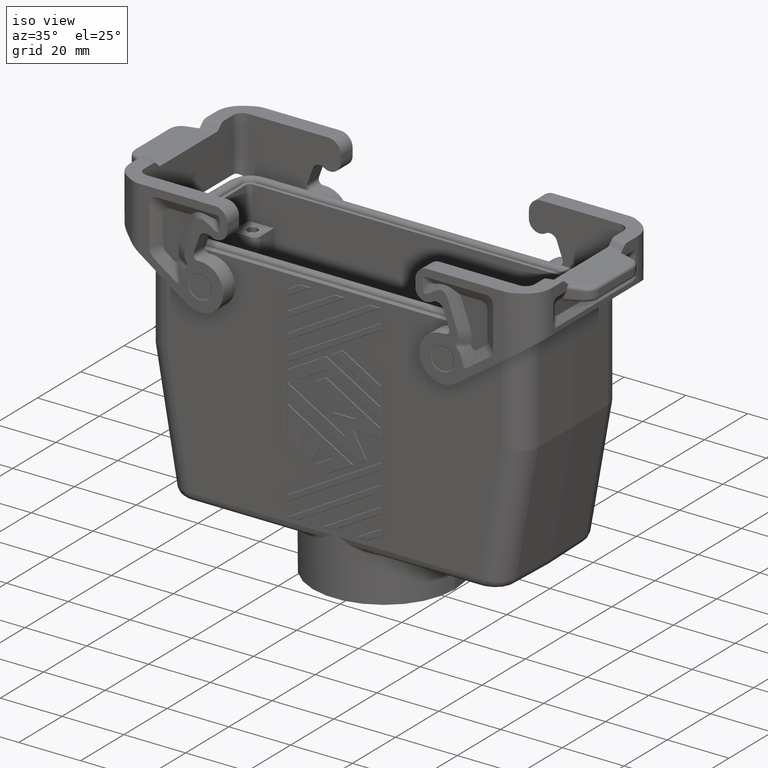
[diagram: clean part render]
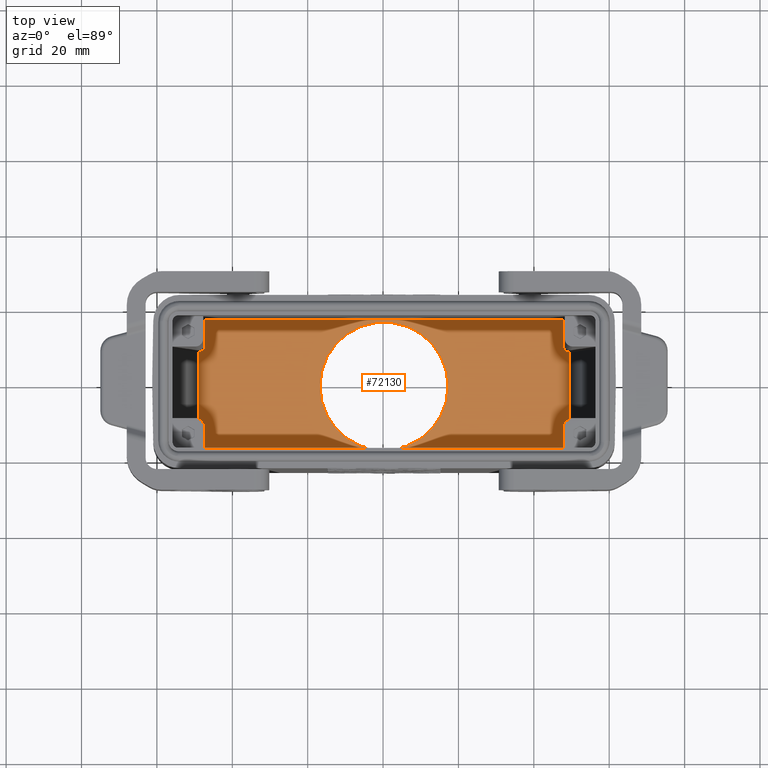
[diagram: tour spotlight — one face highlighted and labeled with its STEP entity id]
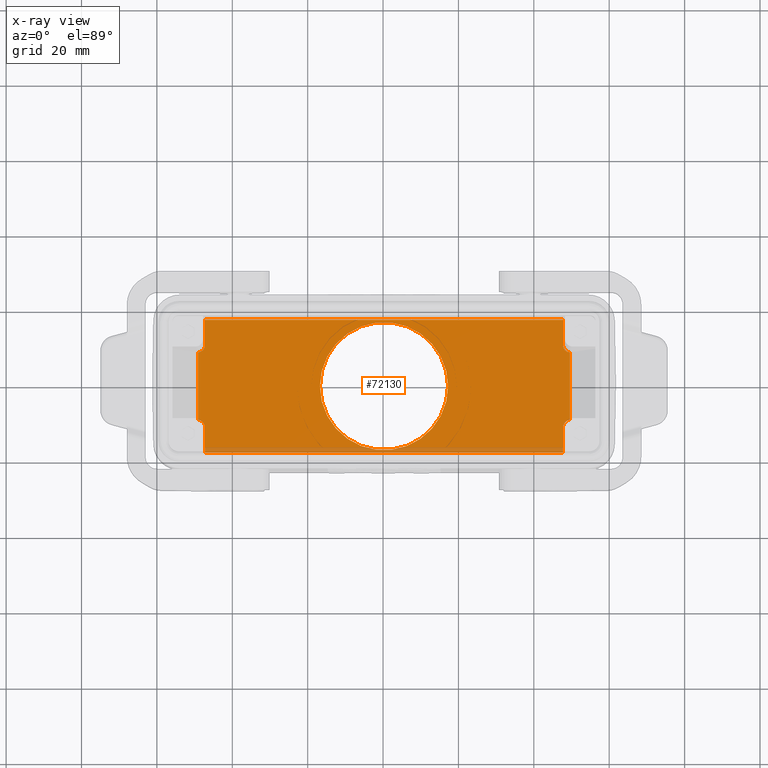
[diagram: x-ray of the same camera — body ghosted, this tour face saturated]
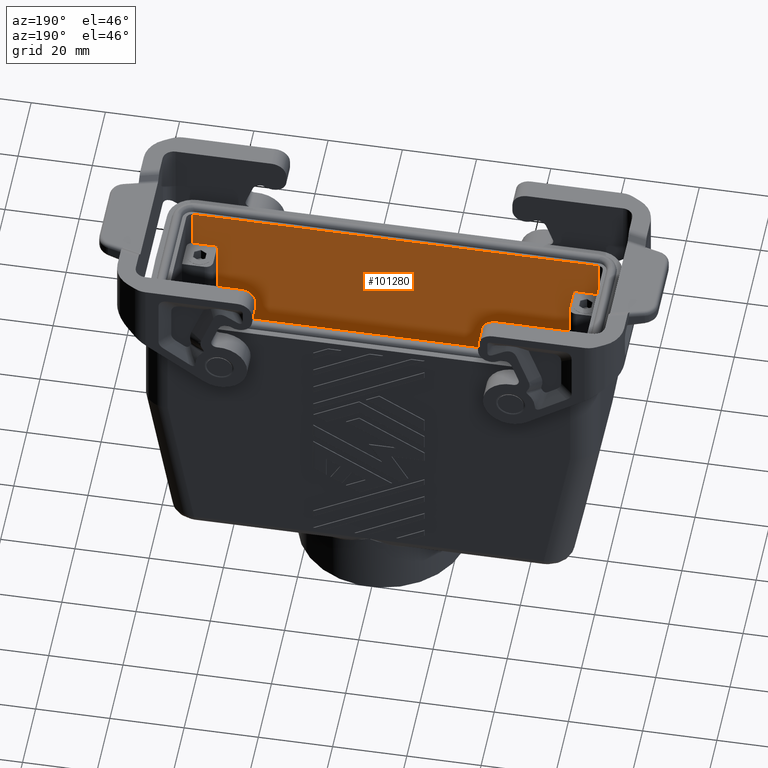
[diagram: tour spotlight — one face highlighted and labeled with its STEP entity id]
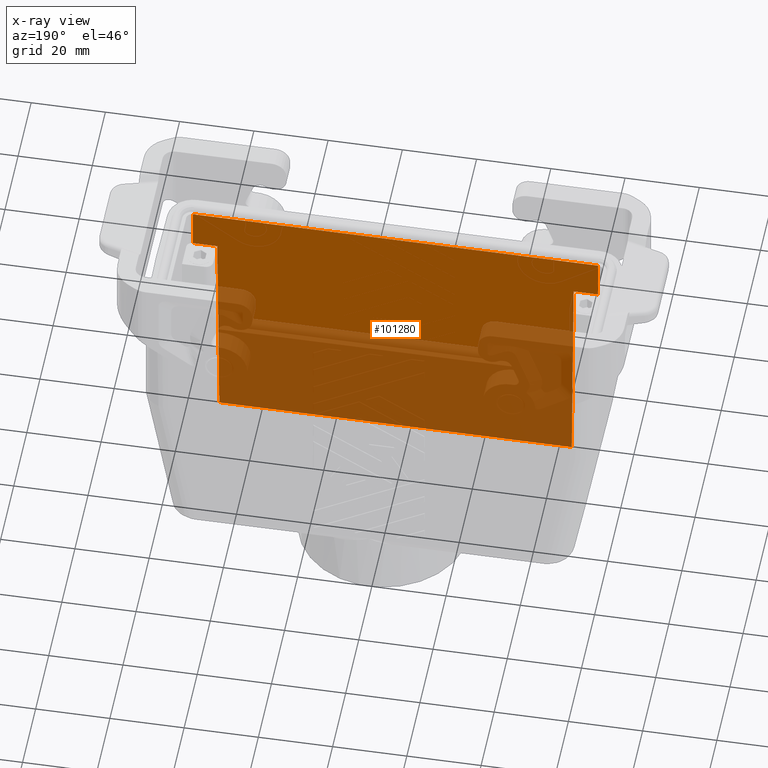
[diagram: x-ray of the same camera — body ghosted, this tour face saturated]
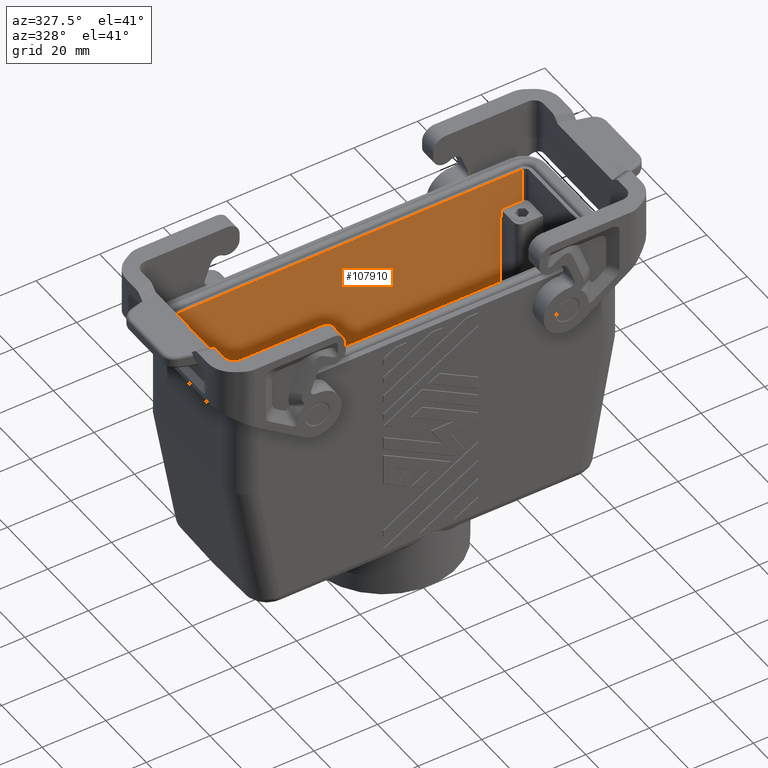
[diagram: tour spotlight — one face highlighted and labeled with its STEP entity id]
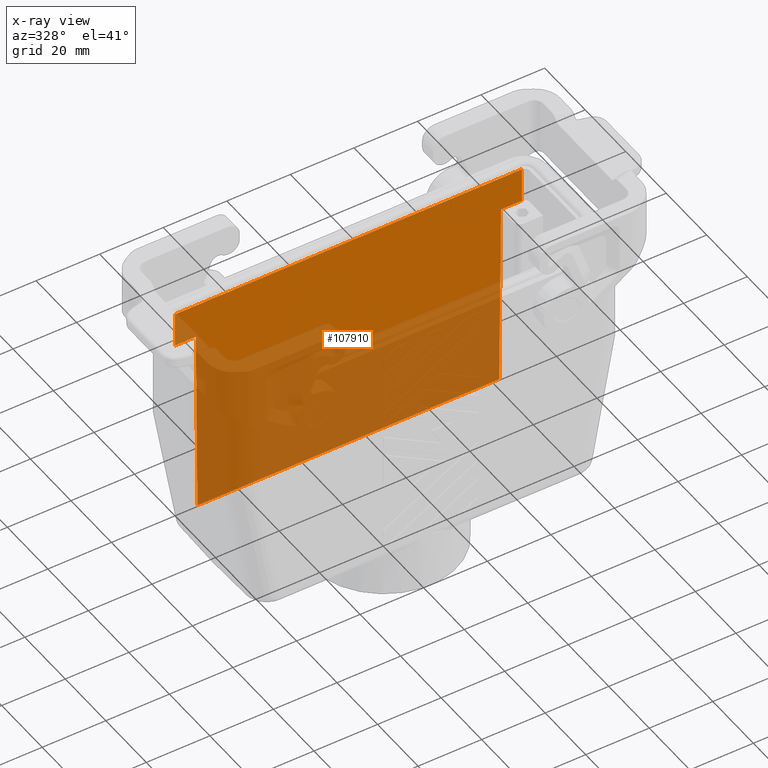
[diagram: x-ray of the same camera — body ghosted, this tour face saturated]
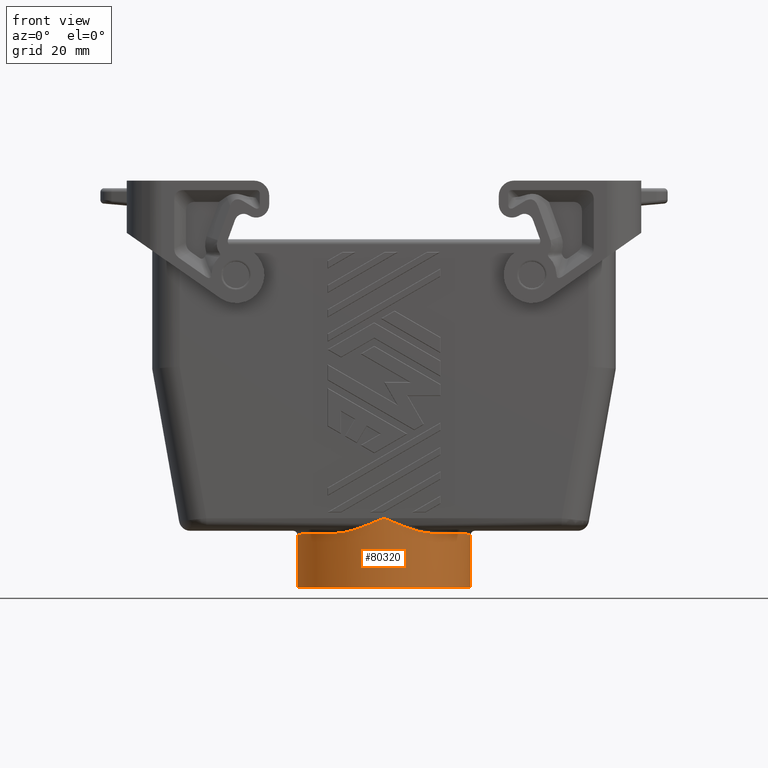
[diagram: tour spotlight — one face highlighted and labeled with its STEP entity id]
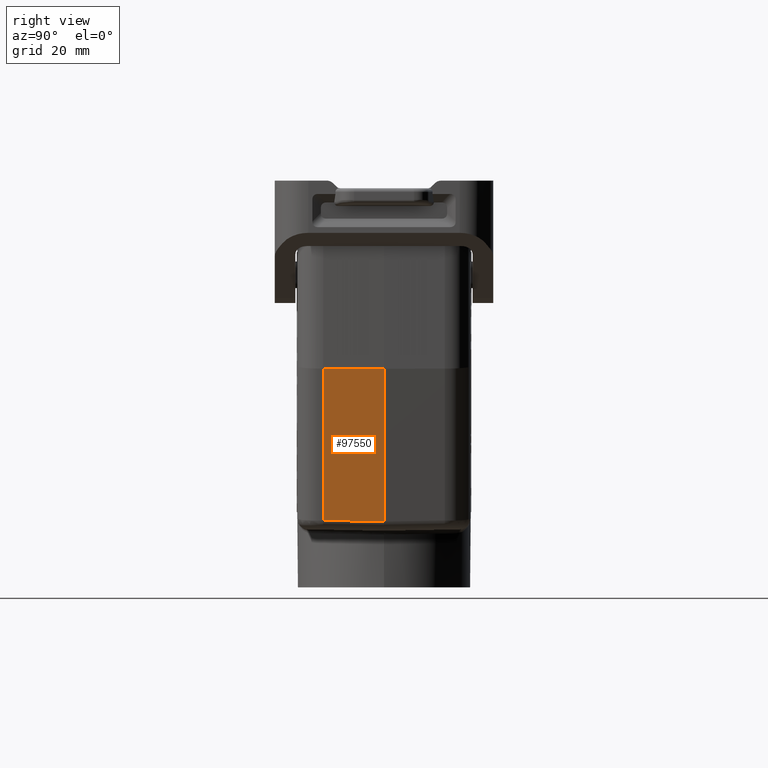
[diagram: tour spotlight — one face highlighted and labeled with its STEP entity id]
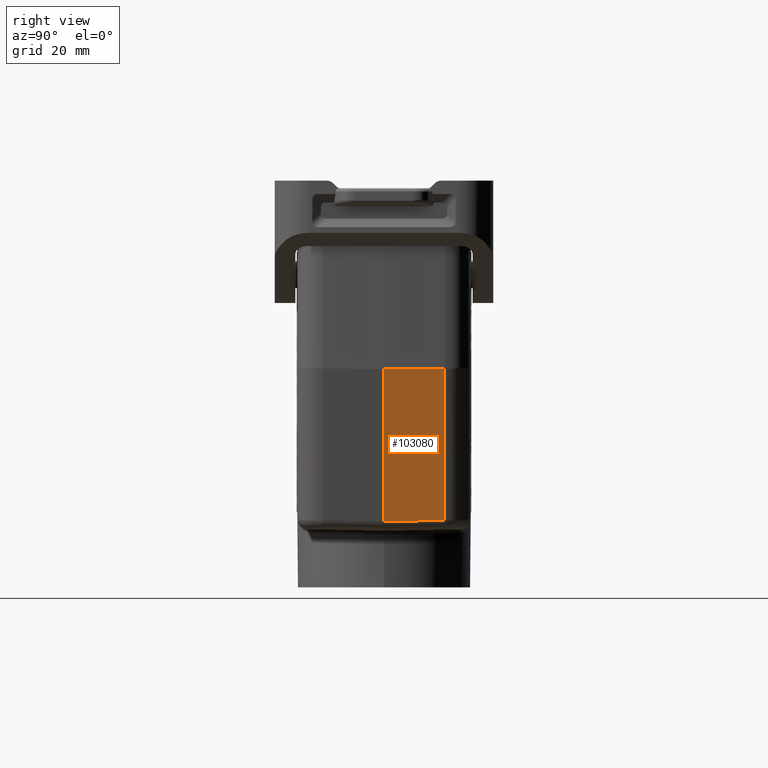
[diagram: tour spotlight — one face highlighted and labeled with its STEP entity id]
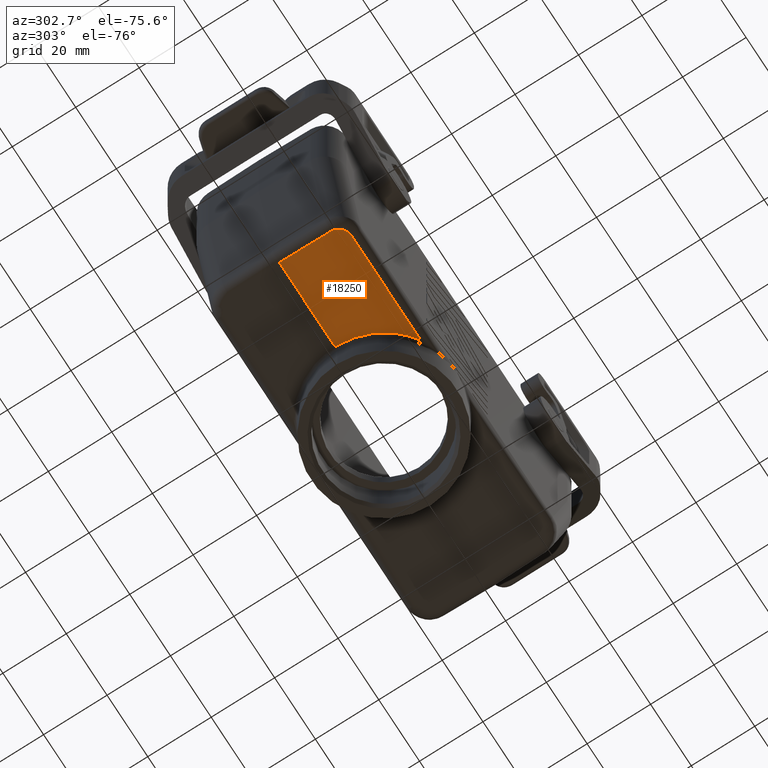
[diagram: tour spotlight — one face highlighted and labeled with its STEP entity id]
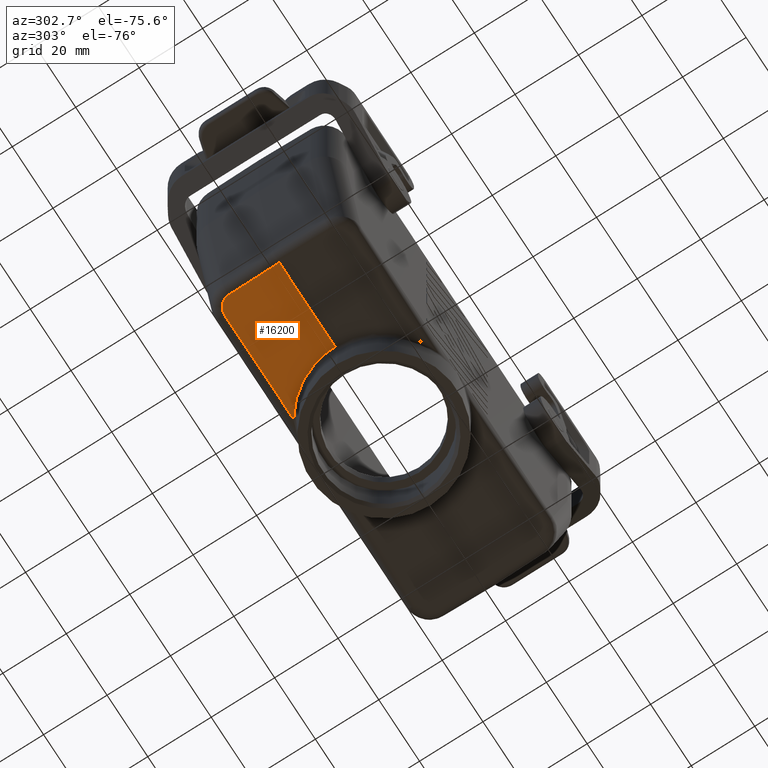
[diagram: tour spotlight — one face highlighted and labeled with its STEP entity id]
A machine part: a face-by-face anatomy tour. The part has 562 B-rep faces; the first image is the clean iso view, then the 8 largest visible faces are spotlighted one at a time (largest first), each with its STEP entity span.

Face 1 — top view, entity #72130. An x-ray twin of the same camera follows (body ghosted, this face saturated) — the face is partly hidden behind the body. In plain terms, the highlighted planar face has unit normal (0, 0, 1).
Definition (entity closure, byte-faithful):
#70910=CARTESIAN_POINT('',(35.5552947479214,94.100393,22.6364652298223))
;
#70920=DIRECTION('',(-0.,-1.,-0.));
#70930=DIRECTION('',(-1.,0.,0.));
#70940=AXIS2_PLACEMENT_3D('',#70910,#70920,#70930);
#70950=PLANE('',#70940);
#70960=CARTESIAN_POINT('',(-2.74650201756106,94.100393,
-1.06581410364015E-14));
#70970=DIRECTION('',(0.,1.,0.));
#70980=DIRECTION('',(-1.,0.,0.));
#70990=AXIS2_PLACEMENT_3D('',#70960,#70970,#70980);
#71000=CIRCLE('',#70990,17.);
#71010=CARTESIAN_POINT('',(-19.7465020175611,94.100393,
-1.06581410364015E-14));
#71020=VERTEX_POINT('',#71010);
#71030=CARTESIAN_POINT('',(14.2534979824389,94.100393,
-8.576241477851E-15));
#71040=VERTEX_POINT('',#71030);
#71050=EDGE_CURVE('',#71020,#71040,#71000,.T.);
#71060=ORIENTED_EDGE('',*,*,#71050,.T.);
#71070=EDGE_CURVE('',#71040,#71020,#71000,.T.);
#71080=ORIENTED_EDGE('',*,*,#71070,.T.);
#71090=EDGE_LOOP('',(#71080,#71060));
#71100=FACE_BOUND('',#71090,.T.);
#71110=CARTESIAN_POINT('',(44.7342493488889,94.100393,0.));
#71120=DIRECTION('',(-1.06873307065348E-18,0.,-1.));
#71130=VECTOR('',#71120,1.);
#71140=LINE('',#71110,#71130);
#71150=CARTESIAN_POINT('',(44.7342493488889,94.100393,17.5959955456979))
;
#71160=VERTEX_POINT('',#71150);
#71170=CARTESIAN_POINT('',(44.7342493488889,94.100393,10.9806752125778))
;
#71180=VERTEX_POINT('',#71170);
#71190=EDGE_CURVE('',#71160,#71180,#71140,.T.);
#71200=ORIENTED_EDGE('',*,*,#71190,.F.);
#71210=CARTESIAN_POINT('',(46.7343255056603,94.100393,10.9808275232209))
;
#71220=DIRECTION('',(0.,-1.,0.));
#71230=DIRECTION('',(-0.70710678118636,0.,-0.707106781186735));
#71240=AXIS2_PLACEMENT_3D('',#71210,#71220,#71230);
#71250=ELLIPSE('',#71240,2.00015231064324,2.);
#71260=CARTESIAN_POINT('',(46.5563898405001,94.100393,8.98866851922954))
;
#71270=VERTEX_POINT('',#71260);
#71280=EDGE_CURVE('',#71180,#71270,#71250,.T.);
#71290=ORIENTED_EDGE('',*,*,#71280,.F.);
#71300=CARTESIAN_POINT('',(46.5563898405001,94.100393,0.));
#71310=DIRECTION('',(2.15938272527935E-17,0.,1.));
#71320=VECTOR('',#71310,1.);
#71330=LINE('',#71300,#71320);
#71340=CARTESIAN_POINT('',(46.5563898405001,94.100393,-8.98866851923038)
);
#71350=VERTEX_POINT('',#71340);
#71360=EDGE_CURVE('',#71350,#71270,#71330,.T.);
#71370=ORIENTED_EDGE('',*,*,#71360,.T.);
#71380=CARTESIAN_POINT('',(46.7343255056603,94.100393,-10.9808275232217)
);
#71390=DIRECTION('',(0.,-1.,0.));
#71400=DIRECTION('',(0.707106781186345,0.,-0.70710678118675));
#71410=AXIS2_PLACEMENT_3D('',#71380,#71390,#71400);
#71420=ELLIPSE('',#71410,2.00015231064324,2.);
#71430=CARTESIAN_POINT('',(44.7342493488889,94.100393,-10.9806752125786)
);
#71440=VERTEX_POINT('',#71430);
#71450=EDGE_CURVE('',#71350,#71440,#71420,.T.);
#71460=ORIENTED_EDGE('',*,*,#71450,.F.);
#71470=CARTESIAN_POINT('',(44.7342493488889,94.100393,0.));
#71480=DIRECTION('',(1.06873307065347E-18,0.,1.));
#71490=VECTOR('',#71480,1.);
#71500=LINE('',#71470,#71490);
#71510=CARTESIAN_POINT('',(44.7342493488889,94.100393,-17.5959955456988)
);
#71520=VERTEX_POINT('',#71510);
#71530=EDGE_CURVE('',#71520,#71440,#71500,.T.);
#71540=ORIENTED_EDGE('',*,*,#71530,.T.);
#71550=CARTESIAN_POINT('',(45.6034979824379,94.100393,-17.5959955456988)
);
#71560=DIRECTION('',(1.,0.,1.06708598867538E-18));
#71570=VECTOR('',#71560,1.);
#71580=LINE('',#71550,#71570);
#71590=CARTESIAN_POINT('',(-50.2272533840108,94.100393,-17.5959955456988
));
#71600=VERTEX_POINT('',#71590);
#71610=EDGE_CURVE('',#71600,#71520,#71580,.T.);
#71620=ORIENTED_EDGE('',*,*,#71610,.T.);
#71630=CARTESIAN_POINT('',(-50.2272533840109,94.100393,0.));
#71640=DIRECTION('',(1.06873307065348E-18,0.,1.));
#71650=VECTOR('',#71640,1.);
#71660=LINE('',#71630,#71650);
#71670=CARTESIAN_POINT('',(-50.2272533840109,94.100393,-10.9806752125786
));
#71680=VERTEX_POINT('',#71670);
#71690=EDGE_CURVE('',#71600,#71680,#71660,.T.);
#71700=ORIENTED_EDGE('',*,*,#71690,.F.);
#71710=CARTESIAN_POINT('',(-52.2273295407823,94.100393,-10.9808275232217
));
#71720=DIRECTION('',(0.,-1.,0.));
#71730=DIRECTION('',(-0.70710678118636,0.,-0.707106781186735));
#71740=AXIS2_PLACEMENT_3D('',#71710,#71720,#71730);
#71750=ELLIPSE('',#71740,2.00015231064324,2.);
#71760=CARTESIAN_POINT('',(-52.0493938756221,94.100393,-8.98866851923037
));
#71770=VERTEX_POINT('',#71760);
#71780=EDGE_CURVE('',#71680,#71770,#71750,.T.);
#71790=ORIENTED_EDGE('',*,*,#71780,.F.);
#71800=CARTESIAN_POINT('',(-52.0493938756221,94.100393,0.));
#71810=DIRECTION('',(-2.15938272527935E-17,0.,-1.));
#71820=VECTOR('',#71810,1.);
#71830=LINE('',#71800,#71820);
#71840=CARTESIAN_POINT('',(-52.0493938756221,94.100393,8.98866851922955)
);
#71850=VERTEX_POINT('',#71840);
#71860=EDGE_CURVE('',#71850,#71770,#71830,.T.);
#71870=ORIENTED_EDGE('',*,*,#71860,.T.);
#71880=CARTESIAN_POINT('',(-52.2273295407823,94.100393,10.9808275232209)
);
#71890=DIRECTION('',(0.,-1.,0.));
#71900=DIRECTION('',(0.707106781186345,0.,-0.70710678118675));
#71910=AXIS2_PLACEMENT_3D('',#71880,#71890,#71900);
#71920=ELLIPSE('',#71910,2.00015231064324,2.);
#71930=CARTESIAN_POINT('',(-50.2272533840109,94.100393,10.9806752125778)
);
#71940=VERTEX_POINT('',#71930);
#71950=EDGE_CURVE('',#71850,#71940,#71920,.T.);
#71960=ORIENTED_EDGE('',*,*,#71950,.F.);
#71970=CARTESIAN_POINT('',(-50.2272533840109,94.100393,0.));
#71980=DIRECTION('',(-1.06873307065347E-18,0.,-1.));
#71990=VECTOR('',#71980,1.);
#72000=LINE('',#71970,#71990);
#72010=CARTESIAN_POINT('',(-50.2272533840109,94.100393,17.5959955456979)
);
#72020=VERTEX_POINT('',#72010);
#72030=EDGE_CURVE('',#72020,#71940,#72000,.T.);
#72040=ORIENTED_EDGE('',*,*,#72030,.T.);
#72050=CARTESIAN_POINT('',(45.6034979824379,94.100393,17.5959955456979))
;
#72060=DIRECTION('',(-1.,0.,-1.0703801526316E-18));
#72070=VECTOR('',#72060,1.);
#72080=LINE('',#72050,#72070);
#72090=EDGE_CURVE('',#71160,#72020,#72080,.T.);
#72100=ORIENTED_EDGE('',*,*,#72090,.T.);
#72110=EDGE_LOOP('',(#72100,#72040,#71960,#71870,#71790,#71700,#71620,
#71540,#71460,#71370,#71290,#71200));
#72120=FACE_OUTER_BOUND('',#72110,.T.);
#72130=ADVANCED_FACE('',(#71100,#72120),#70950,.T.);

Face 2 — auxiliary view, entity #101280. An x-ray twin of the same camera follows (body ghosted, this face saturated) — the face is partly hidden behind the body. In plain terms, the highlighted planar face has unit normal (0, -1, -0).
Definition (entity closure, byte-faithful):
#71150=CARTESIAN_POINT('',(44.7342493488889,94.100393,17.5959955456979))
;
#71160=VERTEX_POINT('',#71150);
#72010=CARTESIAN_POINT('',(-50.2272533840109,94.100393,17.5959955456979)
);
#72020=VERTEX_POINT('',#72010);
#72050=CARTESIAN_POINT('',(45.6034979824379,94.100393,17.5959955456979))
;
#72060=DIRECTION('',(-1.,0.,-1.0703801526316E-18));
#72070=VECTOR('',#72060,1.);
#72080=LINE('',#72050,#72070);
#72090=EDGE_CURVE('',#71160,#72020,#72080,.T.);
#81490=CARTESIAN_POINT('',(-57.3424975632594,34.600393,17.5959955456979)
);
#81500=VERTEX_POINT('',#81490);
#81530=CARTESIAN_POINT('',(45.6034979824379,34.600393,17.5959955456979))
;
#81540=DIRECTION('',(-1.,-1.22464679914735E-16,-1.07038015263161E-18));
#81550=VECTOR('',#81540,1.);
#81560=LINE('',#81530,#81550);
#81570=CARTESIAN_POINT('',(-50.746502017561,34.600393,17.5959955456979))
;
#81580=VERTEX_POINT('',#81570);
#81590=EDGE_CURVE('',#81580,#81500,#81560,.T.);
#96490=CARTESIAN_POINT('',(-50.5614095918854,55.8098842073269,
17.5959955456979));
#96500=DIRECTION('',(-0.00872653549837365,-0.999961923064171,0.));
#96510=VECTOR('',#96500,1.);
#96520=LINE('',#96490,#96510);
#96530=EDGE_CURVE('',#72020,#81580,#96520,.T.);
#100800=CARTESIAN_POINT('',(45.6034979824379,23.6003929999999,
17.5959955456979));
#100810=DIRECTION('',(-1.0703801526316E-18,2.02020232389875E-37,1.));
#100820=DIRECTION('',(1.,0.,1.0703801526316E-18));
#100830=AXIS2_PLACEMENT_3D('',#100800,#100810,#100820);
#100840=PLANE('',#100830);
#100850=CARTESIAN_POINT('',(45.6034979824379,34.600393,17.5959955456979)
);
#100860=DIRECTION('',(1.,1.92592994438724E-34,1.0703801526316E-18));
#100870=VECTOR('',#100860,1.);
#100880=LINE('',#100850,#100870);
#100890=CARTESIAN_POINT('',(45.253497982439,34.600393,17.5959955456979))
;
#100900=VERTEX_POINT('',#100890);
#100910=CARTESIAN_POINT('',(51.8494935281373,34.600393,17.5959955456979)
);
#100920=VERTEX_POINT('',#100910);
#100930=EDGE_CURVE('',#100900,#100920,#100880,.T.);
#100940=ORIENTED_EDGE('',*,*,#100930,.T.);
#100950=CARTESIAN_POINT('',(45.0684055567634,55.8098842073269,
17.5959955456979));
#100960=DIRECTION('',(0.00872653549837378,-0.999961923064171,0.));
#100970=VECTOR('',#100960,1.);
#100980=LINE('',#100950,#100970);
#100990=EDGE_CURVE('',#71160,#100900,#100980,.T.);
#101000=ORIENTED_EDGE('',*,*,#100990,.T.);
#101010=ORIENTED_EDGE('',*,*,#72090,.F.);
#101020=ORIENTED_EDGE('',*,*,#96530,.F.);
#101030=ORIENTED_EDGE('',*,*,#81590,.F.);
#101040=CARTESIAN_POINT('',(-57.3424975632594,55.8098842073269,
17.5959955456979));
#101050=DIRECTION('',(-1.88736900523796E-19,-1.,0.));
#101060=VECTOR('',#101050,1.);
#101070=LINE('',#101040,#101060);
#101080=CARTESIAN_POINT('',(-57.3424975632594,23.6003929999999,
17.5959955456979));
#101090=VERTEX_POINT('',#101080);
#101100=EDGE_CURVE('',#81500,#101090,#101070,.T.);
#101110=ORIENTED_EDGE('',*,*,#101100,.F.);
#101120=CARTESIAN_POINT('',(45.6034979824379,23.6003929999999,
17.5959955456979));
#101130=DIRECTION('',(1.,-1.88736900523796E-19,1.0703801526316E-18));
#101140=VECTOR('',#101130,1.);
#101150=LINE('',#101120,#101140);
#101160=CARTESIAN_POINT('',(51.8494935281373,23.6003929999999,
17.5959955456979));
#101170=VERTEX_POINT('',#101160);
#101180=EDGE_CURVE('',#101090,#101170,#101150,.T.);
#101190=ORIENTED_EDGE('',*,*,#101180,.F.);
#101200=CARTESIAN_POINT('',(51.8494935281373,55.8098842073269,
17.5959955456979));
#101210=DIRECTION('',(1.88736900523796E-19,1.,0.));
#101220=VECTOR('',#101210,1.);
#101230=LINE('',#101200,#101220);
#101240=EDGE_CURVE('',#101170,#100920,#101230,.T.);
#101250=ORIENTED_EDGE('',*,*,#101240,.F.);
#101260=EDGE_LOOP('',(#101250,#101190,#101110,#101030,#101020,#101010,
#101000,#100940));
#101270=FACE_OUTER_BOUND('',#101260,.T.);
#101280=ADVANCED_FACE('',(#101270),#100840,.F.);

Face 3 — auxiliary view, entity #107910. An x-ray twin of the same camera follows (body ghosted, this face saturated) — the face is partly hidden behind the body. In plain terms, the highlighted planar face has unit normal (-0, 1, 0).
Definition (entity closure, byte-faithful):
#71510=CARTESIAN_POINT('',(44.7342493488889,94.100393,-17.5959955456988)
);
#71520=VERTEX_POINT('',#71510);
#71550=CARTESIAN_POINT('',(45.6034979824379,94.100393,-17.5959955456988)
);
#71560=DIRECTION('',(1.,0.,1.06708598867538E-18));
#71570=VECTOR('',#71560,1.);
#71580=LINE('',#71550,#71570);
#71590=CARTESIAN_POINT('',(-50.2272533840108,94.100393,-17.5959955456988
));
#71600=VERTEX_POINT('',#71590);
#71610=EDGE_CURVE('',#71600,#71520,#71580,.T.);
#82520=CARTESIAN_POINT('',(45.6034979824379,34.600393,-17.5959955456988)
);
#82530=DIRECTION('',(-1.,1.92592994438724E-34,-1.06708598867538E-18));
#82540=VECTOR('',#82530,1.);
#82550=LINE('',#82520,#82540);
#82560=CARTESIAN_POINT('',(-50.746502017561,34.600393,-17.5959955456988)
);
#82570=VERTEX_POINT('',#82560);
#82580=CARTESIAN_POINT('',(-57.3424975632594,34.600393,-17.5959955456988
));
#82590=VERTEX_POINT('',#82580);
#82600=EDGE_CURVE('',#82570,#82590,#82550,.T.);
#84310=CARTESIAN_POINT('',(51.8494935281373,34.600393,-17.5959955456988)
);
#84320=VERTEX_POINT('',#84310);
#84350=CARTESIAN_POINT('',(45.6034979824379,34.600393,-17.5959955456988)
);
#84360=DIRECTION('',(1.,-1.22464679914735E-16,1.06708598867537E-18));
#84370=VECTOR('',#84360,1.);
#84380=LINE('',#84350,#84370);
#84390=CARTESIAN_POINT('',(45.253497982439,34.600393,-17.5959955456988))
;
#84400=VERTEX_POINT('',#84390);
#84410=EDGE_CURVE('',#84400,#84320,#84380,.T.);
#86600=CARTESIAN_POINT('',(-57.3424975632594,23.6003929999999,
-17.5959955456988));
#86610=VERTEX_POINT('',#86600);
#86660=CARTESIAN_POINT('',(-57.3424975632594,55.8098842073269,
-17.5959955456988));
#86670=DIRECTION('',(1.88736900523796E-19,1.,0.));
#86680=VECTOR('',#86670,1.);
#86690=LINE('',#86660,#86680);
#86700=EDGE_CURVE('',#86610,#82590,#86690,.T.);
#102730=CARTESIAN_POINT('',(-50.5614095918854,55.8098842073269,
-17.5959955456988));
#102740=DIRECTION('',(-0.00872653549837378,-0.999961923064171,0.));
#102750=VECTOR('',#102740,1.);
#102760=LINE('',#102730,#102750);
#102770=EDGE_CURVE('',#71600,#82570,#102760,.T.);
#107590=CARTESIAN_POINT('',(45.6034979824379,23.6003929999999,
-17.5959955456988));
#107600=DIRECTION('',(1.06708598867538E-18,-2.01398502094961E-37,-1.));
#107610=DIRECTION('',(-1.,0.,-1.06708598867538E-18));
#107620=AXIS2_PLACEMENT_3D('',#107590,#107600,#107610);
#107630=PLANE('',#107620);
#107640=CARTESIAN_POINT('',(45.6034979824379,23.6003929999999,
-17.5959955456988));
#107650=DIRECTION('',(-1.,1.88736900523796E-19,-1.06708598867538E-18));
#107660=VECTOR('',#107650,1.);
#107670=LINE('',#107640,#107660);
#107680=CARTESIAN_POINT('',(51.8494935281373,23.6003929999999,
-17.5959955456988));
#107690=VERTEX_POINT('',#107680);
#107700=EDGE_CURVE('',#107690,#86610,#107670,.T.);
#107710=ORIENTED_EDGE('',*,*,#107700,.F.);
#107720=ORIENTED_EDGE('',*,*,#86700,.F.);
#107730=ORIENTED_EDGE('',*,*,#82600,.T.);
#107740=ORIENTED_EDGE('',*,*,#102770,.T.);
#107750=ORIENTED_EDGE('',*,*,#71610,.F.);
#107760=CARTESIAN_POINT('',(45.0684055567634,55.8098842073269,
-17.5959955456988));
#107770=DIRECTION('',(0.00872653549837365,-0.999961923064171,0.));
#107780=VECTOR('',#107770,1.);
#107790=LINE('',#107760,#107780);
#107800=EDGE_CURVE('',#71520,#84400,#107790,.T.);
#107810=ORIENTED_EDGE('',*,*,#107800,.F.);
#107820=ORIENTED_EDGE('',*,*,#84410,.F.);
#107830=CARTESIAN_POINT('',(51.8494935281373,55.8098842073269,
-17.5959955456988));
#107840=DIRECTION('',(-1.88736900523796E-19,-1.,0.));
#107850=VECTOR('',#107840,1.);
#107860=LINE('',#107830,#107850);
#107870=EDGE_CURVE('',#84320,#107690,#107860,.T.);
#107880=ORIENTED_EDGE('',*,*,#107870,.F.);
#107890=EDGE_LOOP('',(#107880,#107820,#107810,#107750,#107740,#107730,
#107720,#107710));
#107900=FACE_OUTER_BOUND('',#107890,.T.);
#107910=ADVANCED_FACE('',(#107900),#107630,.F.);

Face 4 — front view, entity #80320. In plain terms, the highlighted cylindrical surface (partial cylindrical patch) has radius 23 mm, axis along (0, 0, 1).
Definition (entity closure, byte-faithful):
#10640=CARTESIAN_POINT('',(9.86578833981932,100.250225519835,
19.2335678422161));
#10650=CARTESIAN_POINT('',(9.82303332829895,100.249714885179,
19.2616041703666));
#10660=CARTESIAN_POINT('',(9.78017333437998,100.248885358312,
19.2895053288084));
#10670=CARTESIAN_POINT('',(9.66768015074339,100.245903277909,
19.3622039938679));
#10680=CARTESIAN_POINT('',(9.59792219396867,100.243248809754,
19.406752171421));
#10690=CARTESIAN_POINT('',(9.4578483936881,100.236391114615,
19.495145784539));
#10700=CARTESIAN_POINT('',(9.38754128071854,100.232183941168,
19.5389826936219));
#10710=CARTESIAN_POINT('',(9.24651774466798,100.22229408507,
19.6258590407967));
#10720=CARTESIAN_POINT('',(9.17579542822283,100.216609134742,
19.6689007741836));
#10730=CARTESIAN_POINT('',(8.96303267309325,100.197442409728,
19.7968234163247));
#10740=CARTESIAN_POINT('',(8.82047497817381,100.181849672724,
19.8804481597253));
#10750=CARTESIAN_POINT('',(8.53403590869707,100.145555793672,
20.0443694603297));
#10760=CARTESIAN_POINT('',(8.39017610358687,100.12484853335,
20.1246466836027));
#10770=CARTESIAN_POINT('',(8.10124460134423,100.078776756877,
20.2818511716149));
#10780=CARTESIAN_POINT('',(7.95623400486705,100.05341456866,
20.3587388696096));
#10790=CARTESIAN_POINT('',(7.71061001456071,100.007031189639,
20.4856417699619));
#10800=CARTESIAN_POINT('',(7.61028192392796,99.9871262352295,
20.5365439756472));
#10810=CARTESIAN_POINT('',(7.40914598991442,99.9454274069495,
20.6367499847685));
#10820=CARTESIAN_POINT('',(7.30836076337757,99.9236362781164,
20.6860405692555));
#10830=CARTESIAN_POINT('',(7.10636386323745,99.8782835290775,
20.7830122236568));
#10840=CARTESIAN_POINT('',(7.00516387823428,99.8547229530483,
20.8306860067318));
#10850=CARTESIAN_POINT('',(6.80237230878002,99.8059395331292,
20.9244232272598));
#10860=CARTESIAN_POINT('',(6.70079146343674,99.7807179207429,
20.9704801896698));
#10870=CARTESIAN_POINT('',(6.49725124276215,99.7287091650598,
21.0609933953118));
#10880=CARTESIAN_POINT('',(6.3953017057002,99.7019231097968,
21.1054435768733));
#10890=CARTESIAN_POINT('',(6.19106768033632,99.6468839845523,
21.1927390874569));
#10900=CARTESIAN_POINT('',(6.08878218766546,99.6186294700844,
21.2355833794994));
#10910=CARTESIAN_POINT('',(5.7814129237814,99.5317855617436,
21.3617359645936));
#10920=CARTESIAN_POINT('',(5.57594956197748,99.471150623542,
21.442602611989));
#10930=CARTESIAN_POINT('',(5.16379498999012,99.3449775099472,
21.5980511182038));
#10940=CARTESIAN_POINT('',(4.95713622877756,99.2794398255352,
21.6726073566885));
#10950=CARTESIAN_POINT('',(4.54287154486126,99.1440749307175,
21.8154323434179));
#10960=CARTESIAN_POINT('',(4.33531677122452,99.0742597246405,
21.8836762973212));
#10970=CARTESIAN_POINT('',(3.91937828450702,98.9308575138146,
22.0139406055973));
#10980=CARTESIAN_POINT('',(3.71103967227678,98.8572822072,
22.0759402758655));
#10990=CARTESIAN_POINT('',(3.29366080660055,98.7068366744568,
22.1937715134881));
#11000=CARTESIAN_POINT('',(3.08465905468705,98.6299775223648,
22.2495868980842));
#11010=CARTESIAN_POINT('',(2.6428587179388,98.4647191054812,
22.3609552447511));
#11020=CARTESIAN_POINT('',(2.41004539787559,98.3760034906663,
22.4157743000101));
#11030=CARTESIAN_POINT('',(1.94379740668393,98.195580681463,
22.5179503101454));
#11040=CARTESIAN_POINT('',(1.71040487493784,98.1038876604579,
22.565292994494));
#11050=CARTESIAN_POINT('',(1.24309136224753,97.9180018664418,
22.6525865795178));
#11060=CARTESIAN_POINT('',(1.00921139508543,97.8238237708998,
22.6925253306566));
#11070=CARTESIAN_POINT('',(0.541028245425359,97.6334338176503,
22.7650671983928));
#11080=CARTESIAN_POINT('',(0.306763093636192,97.5372363473227,
22.7976610487926));
#11090=CARTESIAN_POINT('',(-0.162181334881971,97.3432101266778,
22.8555713279321));
#11100=CARTESIAN_POINT('',(-0.396824939773509,97.2453949202402,
22.880878269768));
#11110=CARTESIAN_POINT('',(-0.866366259838237,97.0485790943068,
22.9242380752468));
#11120=CARTESIAN_POINT('',(-1.10122989767678,96.9495922895153,
22.9422858724924));
#11130=CARTESIAN_POINT('',(-1.57114420892366,96.7508281567355,
22.9711549352803));
#11140=CARTESIAN_POINT('',(-1.80616196652742,96.6510644263286,
22.9819726223628));
#11150=CARTESIAN_POINT('',(-2.27630331077967,96.4511386088893,
22.9963959917277));
#11160=CARTESIAN_POINT('',(-2.51137342776347,96.3509401665501,23.));
#11170=CARTESIAN_POINT('',(-2.74650201756099,96.2508347173039,23.));
#11180=B_SPLINE_CURVE_WITH_KNOTS('',3,(#10640,#10650,#10660,#10670,
#10680,#10690,#10700,#10710,#10720,#10730,#10740,#10750,#10760,#10770,
#10780,#10790,#10800,#10810,#10820,#10830,#10840,#10850,#10860,#10870,
#10880,#10890,#10900,#10910,#10920,#10930,#10940,#10950,#10960,#10970,
#10980,#10990,#11000,#11010,#11020,#11030,#11040,#11050,#11060,#11070,
#11080,#11090,#11100,#11110,#11120,#11130,#11140,#11150,#11160,#11170),
.UNSPECIFIED.,.F.,.F.,(4,2,2,2,2,2,2,2,2,2,2,2,2,2,2,2,2,2,2,2,2,2,2,2,2
,2,4),(0.,0.151582082086998,0.397316400748405,0.643753323530635,
0.890453399782063,1.38460966481536,1.87973885729007,2.37569193083019,
2.71720300081086,3.05904306302378,3.40119888603372,3.74364329482792,
4.08641405860861,4.4294384237352,5.11620685863633,5.80441934497235,
6.49337340317859,7.18302081374064,7.87323454770174,8.64048105196606,
9.40824057402057,10.176456147341,10.9450185498481,11.7141111449088,
12.4834046078442,13.2528621512392,14.0223920776387),.UNSPECIFIED.);
#11190=CARTESIAN_POINT('',(9.86578833981932,100.250225519835,
19.2335678422161));
#11200=VERTEX_POINT('',#11190);
#11210=CARTESIAN_POINT('',(-2.74650201756099,96.2508347173039,23.));
#11220=VERTEX_POINT('',#11210);
#11230=EDGE_CURVE('',#11200,#11220,#11180,.T.);
#16480=CARTESIAN_POINT('',(-2.74650201756099,114.600393,
-1.77635683940025E-14));
#16490=DIRECTION('',(0.,-1.,0.));
#16500=DIRECTION('',(-1.,0.,0.));
#16510=AXIS2_PLACEMENT_3D('',#16480,#16490,#16500);
#16520=CIRCLE('',#16510,23.);
#16530=CARTESIAN_POINT('',(-25.746502017561,114.600393,
-1.77635683940025E-14));
#16540=VERTEX_POINT('',#16530);
#16550=CARTESIAN_POINT('',(20.253497982439,114.600393,
-2.05802560320414E-14));
#16560=VERTEX_POINT('',#16550);
#16590=EDGE_CURVE('',#16560,#16540,#16520,.T.);
#19500=CARTESIAN_POINT('',(20.253497982439,100.600240695677,
1.8159920782362E-7));
#19510=CARTESIAN_POINT('',(20.2534979822349,100.599769836891,
0.0258516849868808));
#19520=CARTESIAN_POINT('',(20.2534530779749,100.599360982331,
0.0524802442754529));
#19530=CARTESIAN_POINT('',(20.2532734531586,100.598557408375,
0.104961274731028));
#19540=CARTESIAN_POINT('',(20.2531388969297,100.598162688978,
0.130813746460469));
#19550=CARTESIAN_POINT('',(20.2515088329367,100.593760501327,
0.372506526380412));
#19560=CARTESIAN_POINT('',(20.2469599140499,100.589799941932,
0.589952643147155));
#19570=CARTESIAN_POINT('',(20.1726308402968,100.551257226315,
2.70605872955004));
#19580=CARTESIAN_POINT('',(19.8709489593351,100.516958426876,
4.58916159572048));
#19590=CARTESIAN_POINT('',(18.8113750081148,100.45049548628,
8.23816844077566));
#19600=CARTESIAN_POINT('',(18.0575624701813,100.418587217399,
9.99002429484997));
#19610=CARTESIAN_POINT('',(17.0969319783633,100.388731432106,
11.6291928889926));
#19620=CARTESIAN_POINT('',(15.7621733903671,100.347247983308,
13.9067536960256));
#19630=CARTESIAN_POINT('',(14.0452395127216,100.3102582286,
15.9375977561561));
#19640=CARTESIAN_POINT('',(11.3691183263139,100.269434901433,
18.1789159845504));
#19650=CARTESIAN_POINT('',(10.6877372929315,100.260162025177,
18.6880235959593));
#19660=CARTESIAN_POINT('',(9.94230916605324,100.251142416874,
19.1832260673034));
#19670=CARTESIAN_POINT('',(9.9040863284291,100.250682939604,
19.2084541786248));
#19680=CARTESIAN_POINT('',(9.86578833981932,100.250225519835,
19.2335678422161));
#19690=B_SPLINE_CURVE_WITH_KNOTS('',3,(#19500,#19510,#19520,#19530,
#19540,#19550,#19560,#19570,#19580,#19590,#19600,#19610,#19620,#19630,
#19640,#19650,#19660,#19670,#19680),.UNSPECIFIED.,.F.,.F.,(4,2,2,2,2,3,2
,2,4),(0.,0.0743712348826841,0.148742469765368,0.814101620175052,
6.62414572180532,12.4341803818413,20.5069968552154,23.1083988995251,
23.2487056183471),.UNSPECIFIED.);
#19700=CARTESIAN_POINT('',(20.253497982439,100.600240695677,
-2.05802560320414E-14));
#19710=VERTEX_POINT('',#19700);
#19720=EDGE_CURVE('',#19710,#11200,#19690,.T.);
#21620=CARTESIAN_POINT('',(-25.746502017561,100.600240695677,
-1.77635683940025E-14));
#21630=VERTEX_POINT('',#21620);
#21680=CARTESIAN_POINT('',(-15.3587926172657,100.250225521339,
19.2335676833134));
#21690=CARTESIAN_POINT('',(-15.3970879512188,100.250682909417,
19.2084557598065));
#21700=CARTESIAN_POINT('',(-15.4353082621435,100.251142353483,
19.1832295476703));
#21710=CARTESIAN_POINT('',(-16.7946790076653,100.267590595696,
18.2801736809286));
#21720=CARTESIAN_POINT('',(-18.0222516799423,100.286032203637,
17.2676762950839));
#21730=CARTESIAN_POINT('',(-20.4692246854507,100.331301564679,
14.782258002831));
#21740=CARTESIAN_POINT('',(-21.6292931504966,100.358875262325,
13.2683825926405));
#21750=CARTESIAN_POINT('',(-22.5899360134853,100.388731432106,
11.6291928889925));
#21760=CARTESIAN_POINT('',(-23.2565414728134,100.409449106216,
10.4917329156507));
#21770=CARTESIAN_POINT('',(-23.8241038574685,100.431172144955,
9.29907552875789));
#21780=CARTESIAN_POINT('',(-24.7486156060464,100.476148897686,
6.82972227543957));
#21790=CARTESIAN_POINT('',(-25.1038539285274,100.499319378053,
5.55759617470756));
#21800=CARTESIAN_POINT('',(-25.6037373042317,100.547602211164,
2.90672958737251));
#21810=CARTESIAN_POINT('',(-25.7366928008045,100.572638035276,
1.53219074305741));
#21820=CARTESIAN_POINT('',(-25.746143081878,100.598162933738,
0.130800308447092));
#21830=CARTESIAN_POINT('',(-25.7462775346736,100.598557603793,
0.104950454698959));
#21840=CARTESIAN_POINT('',(-25.7464571228726,100.599361079215,
0.0524746525958359));
#21850=CARTESIAN_POINT('',(-25.7465020177651,100.599769884582,
0.0258487034177434));
#21860=CARTESIAN_POINT('',(-25.746502017561,100.600240695677,
-1.81599349084174E-7));
#21870=B_SPLINE_CURVE_WITH_KNOTS('',3,(#21680,#21690,#21700,#21710,
#21720,#21730,#21740,#21750,#21760,#21770,#21780,#21790,#21800,#21810,
#21820,#21830,#21840,#21850,#21860),.UNSPECIFIED.,.F.,.F.,(4,2,2,3,2,2,2
,2,4),(0.,0.140438412202994,5.00485025754918,10.8256907847412,
14.8648651989427,18.904043922842,23.1297389967715,23.2042950291808,
23.2788510615901),.UNSPECIFIED.);
#21880=CARTESIAN_POINT('',(-15.3587926172657,100.250225521339,
19.2335676833134));
#21890=VERTEX_POINT('',#21880);
#21900=EDGE_CURVE('',#21890,#21630,#21870,.T.);
#26850=CARTESIAN_POINT('',(20.253497982439,114.600393,
-2.05802560320414E-14));
#26860=DIRECTION('',(0.,-1.,0.));
#26870=VECTOR('',#26860,1.);
#26880=LINE('',#26850,#26870);
#26890=EDGE_CURVE('',#16560,#19710,#26880,.T.);
#26920=CARTESIAN_POINT('',(-25.746502017561,114.600393,
-1.77635683940025E-14));
#26930=DIRECTION('',(0.,-1.,0.));
#26940=VECTOR('',#26930,1.);
#26950=LINE('',#26920,#26940);
#26960=EDGE_CURVE('',#16540,#21630,#26950,.T.);
#29270=CARTESIAN_POINT('',(-2.74650201756099,96.2508347173039,23.));
#29280=CARTESIAN_POINT('',(-2.98163060735853,96.3509401665501,23.));
#29290=CARTESIAN_POINT('',(-3.21670072418345,96.4511386088217,
22.9963959917326));
#29300=CARTESIAN_POINT('',(-3.68684206843572,96.651064426261,
22.9819726223677));
#29310=CARTESIAN_POINT('',(-3.92185982554471,96.7508281564591,
22.9711549353204));
#29320=CARTESIAN_POINT('',(-4.39177413679154,96.9495922892388,
22.9422858725326));
#29330=CARTESIAN_POINT('',(-4.62663777374132,97.0485790936603,
22.9242380753892));
#29340=CARTESIAN_POINT('',(-5.09617909380587,97.2453949195936,
22.8808782699104));
#29350=CARTESIAN_POINT('',(-5.33082269730927,97.3432101254652,
22.855571328294));
#29360=CARTESIAN_POINT('',(-5.79976712582808,97.5372363461104,
22.7976610491544));
#29370=CARTESIAN_POINT('',(-6.03403227555982,97.6334338156221,
22.7650671991656));
#29380=CARTESIAN_POINT('',(-6.50221542521902,97.8238237688712,
22.6925253314295));
#29390=CARTESIAN_POINT('',(-6.73609538939037,97.9180018632679,
22.6525865810083));
#29400=CARTESIAN_POINT('',(-7.20340890207913,98.1038876572834,
22.5652929959847));
#29410=CARTESIAN_POINT('',(-7.43680142950396,98.1955806767025,
22.5179503128414));
#29420=CARTESIAN_POINT('',(-7.9030494206919,98.3760034859043,
22.4157743027068));
#29430=CARTESIAN_POINT('',(-8.13586273661522,98.4647190993297,
22.3609552488967));
#29440=CARTESIAN_POINT('',(-8.57766307499796,98.6299775168247,
22.2495869018177));
#29450=CARTESIAN_POINT('',(-8.78666482233913,98.70683666747,
22.1937715189603));
#29460=CARTESIAN_POINT('',(-9.20404368800624,98.8572822002099,
22.0759402813403));
#29470=CARTESIAN_POINT('',(-9.41238229197072,98.9308575042789,
22.0139406142593));
#29480=CARTESIAN_POINT('',(-9.82832077867322,99.0742597150997,
21.883676305988));
#29490=CARTESIAN_POINT('',(-10.0358755405414,99.1440749178295,
21.8154323570162));
#29500=CARTESIAN_POINT('',(-10.450140224427,99.2794398126372,
21.6726073702974));
#29510=CARTESIAN_POINT('',(-10.6567989687776,99.3449774927015,
21.598051139451));
#29520=CARTESIAN_POINT('',(-11.0689535407583,99.4711506062942,
21.4426026332387));
#29530=CARTESIAN_POINT('',(-11.2744169168637,99.5317855498658,
21.3617359818478));
#29540=CARTESIAN_POINT('',(-11.5817862017493,99.6186294641403,
21.2355833881341));
#29550=CARTESIAN_POINT('',(-11.684071703396,99.6468839813016,
21.1927390926127));
#29560=CARTESIAN_POINT('',(-11.8883057287512,99.7019231065438,
21.1054435820328));
#29570=CARTESIAN_POINT('',(-11.9902552633681,99.7287091613507,
21.060993401767));
#29580=CARTESIAN_POINT('',(-12.1937954840333,99.7807179170313,
20.9704801961292));
#29590=CARTESIAN_POINT('',(-12.2953763263985,99.8059395289186,
20.9244232353505));
#29600=CARTESIAN_POINT('',(-12.4981678958367,99.8547229488339,
20.8306860148299));
#29610=CARTESIAN_POINT('',(-12.5993678771983,99.8782835243264,
20.7830122338155));
#29620=CARTESIAN_POINT('',(-12.8013647773169,99.9236362733605,
20.6860405794246));
#29630=CARTESIAN_POINT('',(-12.9021499993901,99.9454274016326,
20.6367499975455));
#29640=CARTESIAN_POINT('',(-13.1032859333734,99.9871262299063,
20.5365439884393));
#29650=CARTESIAN_POINT('',(-13.2036140010236,100.00703118045,
20.4856417951018));
#29660=CARTESIAN_POINT('',(-13.4492379691153,100.053414555276,
20.3587389062269));
#29670=CARTESIAN_POINT('',(-13.5942485083159,100.078776736442,
20.2818512413401));
#29680=CARTESIAN_POINT('',(-13.883180010259,100.124848512867,
20.1246467534909));
#29690=CARTESIAN_POINT('',(-14.0270397717871,100.145555771874,
20.044369558779));
#29700=CARTESIAN_POINT('',(-14.3134788408013,100.181849650868,
19.8804482584392));
#29710=CARTESIAN_POINT('',(-14.4560365852496,100.197442398651,
19.7968234902573));
#29720=CARTESIAN_POINT('',(-14.6687994017129,100.21660912919,
19.6689008112395));
#29730=CARTESIAN_POINT('',(-14.7395217460589,100.222294082704,
19.6258590615764));
#29740=CARTESIAN_POINT('',(-14.8805452820463,100.232183938798,
19.5389827144406));
#29750=CARTESIAN_POINT('',(-14.9508523895158,100.236391112691,
19.4951458093356));
#29760=CARTESIAN_POINT('',(-15.0909261897837,100.24324880783,
19.4067521962256));
#29770=CARTESIAN_POINT('',(-15.1606841401006,100.245903276696,
19.3622040234433));
#29780=CARTESIAN_POINT('',(-15.2731774383103,100.248885360136,
19.289505284341));
#29790=CARTESIAN_POINT('',(-15.3160375253304,100.249714885734,
19.2616040649658));
#29800=CARTESIAN_POINT('',(-15.3587926172657,100.250225521339,
19.2335676833134));
#29810=B_SPLINE_CURVE_WITH_KNOTS('',3,(#29270,#29280,#29290,#29300,
#29310,#29320,#29330,#29340,#29350,#29360,#29370,#29380,#29390,#29400,
#29410,#29420,#29430,#29440,#29450,#29460,#29470,#29480,#29490,#29500,
#29510,#29520,#29530,#29540,#29550,#29560,#29570,#29580,#29590,#29600,
#29610,#29620,#29630,#29640,#29650,#29660,#29670,#29680,#29690,#29700,
#29710,#29720,#29730,#29740,#29750,#29760,#29770,#29780,#29790,#29800),
.UNSPECIFIED.,.F.,.F.,(4,2,2,2,2,2,2,2,2,2,2,2,2,2,2,2,2,2,2,2,2,2,2,2,2
,2,4),(0.,0.768167234753415,1.53626221364089,2.30419339835172,
3.07192406079973,3.83912545039831,4.60598059231465,5.37238043823661,
6.13826809406131,6.82725931263621,7.51568508297701,8.20341854618894,
8.89041148961228,9.57596256568802,9.91837874868704,10.2605416991119,
10.6023787757068,10.9439276603561,11.2851612012628,11.6260661596884,
12.1211385373192,12.6153876190152,13.1086643160625,13.3549248536333,
13.6009224710091,13.8462184614538,13.9975303022955),.UNSPECIFIED.);
#29820=EDGE_CURVE('',#11220,#21890,#29810,.T.);
#80180=CARTESIAN_POINT('',(-2.74650201756099,114.600393,
-1.77635683940025E-14));
#80190=DIRECTION('',(0.,-1.,0.));
#80200=DIRECTION('',(-1.,0.,0.));
#80210=AXIS2_PLACEMENT_3D('',#80180,#80190,#80200);
#80220=CYLINDRICAL_SURFACE('',#80210,23.);
#80230=ORIENTED_EDGE('',*,*,#26890,.F.);
#80240=ORIENTED_EDGE('',*,*,#19720,.F.);
#80250=ORIENTED_EDGE('',*,*,#11230,.F.);
#80260=ORIENTED_EDGE('',*,*,#29820,.F.);
#80270=ORIENTED_EDGE('',*,*,#21900,.F.);
#80280=ORIENTED_EDGE('',*,*,#26960,.T.);
#80290=ORIENTED_EDGE('',*,*,#16590,.T.);
#80300=EDGE_LOOP('',(#80290,#80280,#80270,#80260,#80250,#80240,#80230));
#80310=FACE_OUTER_BOUND('',#80300,.T.);
#80320=ADVANCED_FACE('',(#80310),#80220,.T.);

Face 5 — right view, entity #97550. In plain terms, the highlighted planar face has unit normal (0.9847, -0.0175, -0.1736).
Definition (entity closure, byte-faithful):
#83300=CARTESIAN_POINT('',(-64.246502017561,56.6003930000003,
-4.04835906707466E-13));
#83310=VERTEX_POINT('',#83300);
#83780=CARTESIAN_POINT('',(-57.1014996364437,97.121715105156,
-1.14416294896226E-13));
#83790=VERTEX_POINT('',#83780);
#95640=CARTESIAN_POINT('',(-56.8653656983437,96.8403016360919,
16.1221668450609));
#95650=VERTEX_POINT('',#95640);
#97220=CARTESIAN_POINT('',(-61.9920091659913,68.575959531963,
8.06108342253046));
#97230=DIRECTION('',(-0.984657762021401,0.173621730208388,
0.0174524064372835));
#97240=DIRECTION('',(0.017187265168157,-0.003030578573737,
0.999847695156391));
#97250=AXIS2_PLACEMENT_3D('',#97220,#97230,#97240);
#97260=PLANE('',#97250);
#97270=CARTESIAN_POINT('',(-61.8534400829231,68.551526063926,
16.1221668450609));
#97280=DIRECTION('',(0.17364817766693,0.984807753012208,
1.2098363701056E-16));
#97290=VECTOR('',#97280,1.);
#97300=LINE('',#97270,#97290);
#97310=CARTESIAN_POINT('',(-63.9650885484969,56.5757725116938,
16.1221668450609));
#97320=VERTEX_POINT('',#97310);
#97330=EDGE_CURVE('',#97320,#95650,#97300,.T.);
#97340=ORIENTED_EDGE('',*,*,#97330,.T.);
#97350=CARTESIAN_POINT('',(-64.246502017561,56.6003930000003,
-3.90798504668055E-14));
#97360=DIRECTION('',(-0.0174523860931703,0.00152688593462997,
-0.999846529642924));
#97370=VECTOR('',#97360,1.);
#97380=LINE('',#97350,#97370);
#97390=EDGE_CURVE('',#97320,#83310,#97380,.T.);
#97400=ORIENTED_EDGE('',*,*,#97390,.F.);
#97410=CARTESIAN_POINT('',(-64.3858900461966,55.8098842073269,
-2.45817503139373E-13));
#97420=DIRECTION('',(0.17364817766693,0.984807753012208,
3.13239393705554E-15));
#97430=VECTOR('',#97420,1.);
#97440=LINE('',#97410,#97430);
#97450=EDGE_CURVE('',#83310,#83790,#97440,.T.);
#97460=ORIENTED_EDGE('',*,*,#97450,.F.);
#97470=CARTESIAN_POINT('',(-57.100732784413,97.1208012064934,
0.0523572193118115));
#97480=DIRECTION('',(-0.0146427377791872,0.0174505353537614,
-0.999740500853195));
#97490=VECTOR('',#97480,1.);
#97500=LINE('',#97470,#97490);
#97510=EDGE_CURVE('',#95650,#83790,#97500,.T.);
#97520=ORIENTED_EDGE('',*,*,#97510,.T.);
#97530=EDGE_LOOP('',(#97520,#97460,#97400,#97340));
#97540=FACE_OUTER_BOUND('',#97530,.T.);
#97550=ADVANCED_FACE('',(#97540),#97260,.T.);

Face 6 — right view, entity #103080. In plain terms, the highlighted planar face has unit normal (-0.9847, -0.0175, 0.1736).
Definition (entity closure, byte-faithful):
#83220=CARTESIAN_POINT('',(-63.9650885484969,56.5757725116938,
-16.122166845061));
#83230=VERTEX_POINT('',#83220);
#83260=CARTESIAN_POINT('',(-64.246502017561,56.6003930000003,
-3.90798504668055E-14));
#83270=DIRECTION('',(0.0174523860931703,-0.00152688593462973,
-0.999846529642924));
#83280=VECTOR('',#83270,1.);
#83290=LINE('',#83260,#83280);
#83300=CARTESIAN_POINT('',(-64.246502017561,56.6003930000003,
-4.04835906707466E-13));
#83310=VERTEX_POINT('',#83300);
#83320=EDGE_CURVE('',#83310,#83230,#83290,.T.);
#83780=CARTESIAN_POINT('',(-57.1014996364437,97.121715105156,
-1.14416294896226E-13));
#83790=VERTEX_POINT('',#83780);
#83820=CARTESIAN_POINT('',(-57.100732784413,97.1208012064934,
-0.0523572193118433));
#83830=DIRECTION('',(-0.0146427377791872,0.0174505353537612,
0.999740500853195));
#83840=VECTOR('',#83830,1.);
#83850=LINE('',#83820,#83840);
#83860=CARTESIAN_POINT('',(-56.8653656983437,96.8403016360919,
-16.122166845061));
#83870=VERTEX_POINT('',#83860);
#83880=EDGE_CURVE('',#83870,#83790,#83850,.T.);
#97410=CARTESIAN_POINT('',(-64.3858900461966,55.8098842073269,
-2.45817503139373E-13));
#97420=DIRECTION('',(0.17364817766693,0.984807753012208,
3.13239393705554E-15));
#97430=VECTOR('',#97420,1.);
#97440=LINE('',#97410,#97430);
#97450=EDGE_CURVE('',#83310,#83790,#97440,.T.);
#101950=CARTESIAN_POINT('',(-61.8534400829231,68.551526063926,
-16.122166845061));
#101960=DIRECTION('',(0.17364817766693,0.984807753012208,
1.2022469548982E-16));
#101970=VECTOR('',#101960,1.);
#101980=LINE('',#101950,#101970);
#101990=EDGE_CURVE('',#83230,#83870,#101980,.T.);
#102970=CARTESIAN_POINT('',(-61.9920091659913,68.575959531963,
-8.0610834225305));
#102980=DIRECTION('',(0.984657762021401,-0.173621730208388,
0.0174524064372835));
#102990=DIRECTION('',(0.017187265168157,-0.00303057857373676,
-0.999847695156391));
#103000=AXIS2_PLACEMENT_3D('',#102970,#102980,#102990);
#103010=PLANE('',#103000);
#103020=ORIENTED_EDGE('',*,*,#101990,.F.);
#103030=ORIENTED_EDGE('',*,*,#83880,.F.);
#103040=ORIENTED_EDGE('',*,*,#97450,.T.);
#103050=ORIENTED_EDGE('',*,*,#83320,.F.);
#103060=EDGE_LOOP('',(#103050,#103040,#103030,#103020));
#103070=FACE_OUTER_BOUND('',#103060,.T.);
#103080=ADVANCED_FACE('',(#103070),#103010,.F.);

Face 7 — auxiliary view, entity #18250. In plain terms, the highlighted planar face has unit normal (-0, 0.0175, 0.9998).
Definition (entity closure, byte-faithful):
#11300=CARTESIAN_POINT('',(10.4141490620347,99.2503778027731,
20.0523572193118));
#11310=VERTEX_POINT('',#11300);
#15840=CARTESIAN_POINT('',(48.6545223152575,99.600393,
2.14299831689882E-13));
#15850=VERTEX_POINT('',#15840);
#15880=CARTESIAN_POINT('',(58.8534979824379,99.600393,
4.07193686382977E-13));
#15890=DIRECTION('',(1.,0.,7.01599681343837E-15));
#15900=VECTOR('',#15890,1.);
#15910=LINE('',#15880,#15900);
#15920=CARTESIAN_POINT('',(21.2534917914651,99.600393,
1.43392162761848E-13));
#15930=VERTEX_POINT('',#15920);
#15940=EDGE_CURVE('',#15930,#15850,#15910,.T.);
#17690=CARTESIAN_POINT('',(4.82615,99.6405335766915,-2.29965209849421));
#17700=DIRECTION('',(1.22446027950813E-16,-0.999847695156391,
-0.0174524064372836));
#17710=DIRECTION('',(-1.,-1.22464679914735E-16,0.));
#17720=AXIS2_PLACEMENT_3D('',#17690,#17700,#17710);
#17730=PLANE('',#17720);
#17740=ORIENTED_EDGE('',*,*,#15940,.F.);
#17750=CARTESIAN_POINT('',(48.6537554632268,99.5994791013374,
0.0523572193118039));
#17760=DIRECTION('',(0.0146427377791872,0.0174505353537612,
-0.999740500853195));
#17770=VECTOR('',#17760,1.);
#17780=LINE('',#17750,#17770);
#17790=CARTESIAN_POINT('',(48.4183883771575,99.3189795309359,
16.1221668450609));
#17800=VERTEX_POINT('',#17790);
#17810=EDGE_CURVE('',#17800,#15850,#17780,.T.);
#17820=ORIENTED_EDGE('',*,*,#17810,.T.);
#17830=CARTESIAN_POINT('',(44.3693968827781,99.2503778027731,
20.0523572193118));
#17840=CARTESIAN_POINT('',(45.4119850564223,99.2503778027731,
20.0523572193118));
#17850=CARTESIAN_POINT('',(46.4241944519317,99.256820659694,
19.6832461936237));
#17860=CARTESIAN_POINT('',(47.3184822755328,99.2683043172458,
19.0253478927968));
#17870=CARTESIAN_POINT('',(48.0073057334534,99.2834267191652,
18.1589860673954));
#17880=CARTESIAN_POINT('',(48.4031220319192,99.3007858091523,
17.1644844679635));
#17890=CARTESIAN_POINT('',(48.4183883771575,99.3189795309359,
16.1221668450609));
#17900=B_SPLINE_CURVE_WITH_KNOTS('',6,(#17830,#17840,#17850,#17860,
#17870,#17880,#17890),.UNSPECIFIED.,.F.,.F.,(7,7),(0.,1.),.UNSPECIFIED.)
;
#17910=CARTESIAN_POINT('',(44.3693968827781,99.2503778027731,
20.0523572193118));
#17920=VERTEX_POINT('',#17910);
#17930=EDGE_CURVE('',#17920,#17800,#17900,.T.);
#17940=ORIENTED_EDGE('',*,*,#17930,.T.);
#17950=CARTESIAN_POINT('',(45.6034979824379,99.2503778027731,
20.0523572193118));
#17960=DIRECTION('',(-1.,0.,1.49975978266186E-32));
#17970=VECTOR('',#17960,1.);
#17980=LINE('',#17950,#17970);
#17990=EDGE_CURVE('',#17920,#11310,#17980,.T.);
#18000=ORIENTED_EDGE('',*,*,#17990,.F.);
#18010=CARTESIAN_POINT('',(21.2534917914651,99.600393,
1.11269693499094E-14));
#18020=CARTESIAN_POINT('',(21.2534742857882,99.5999728975421,
0.0240676536955625));
#18030=CARTESIAN_POINT('',(21.253424914033,99.5995640437681,
0.0474908707165978));
#18040=CARTESIAN_POINT('',(21.2532494185174,99.5987350931916,
0.0949814174406671));
#18050=CARTESIAN_POINT('',(21.253123294757,99.598314996389,
0.119048747143701));
#18060=CARTESIAN_POINT('',(21.2514223540366,99.5939128081846,
0.371249940464392));
#18070=CARTESIAN_POINT('',(21.246675652669,99.5899522479827,
0.598150282467378));
#18080=CARTESIAN_POINT('',(21.1691148564139,99.5514095206163,
2.80626165443106));
#18090=CARTESIAN_POINT('',(20.854316535793,99.5171107402963,
4.77123746294772));
#18100=CARTESIAN_POINT('',(19.7486738665516,99.4506477825472,
8.57889776225988));
#18110=CARTESIAN_POINT('',(18.9620874837326,99.4187395362596,
10.4069199677806));
#18120=CARTESIAN_POINT('',(17.9596899781861,99.38888373695,
12.1173575646854));
#18130=CARTESIAN_POINT('',(16.5668977542145,99.3474002686763,
14.4939438703934));
#18140=CARTESIAN_POINT('',(14.7753144640597,99.3104105222249,
16.6130850253292));
#18150=CARTESIAN_POINT('',(11.9828411972674,99.2695872098918,
18.9518510225325));
#18160=CARTESIAN_POINT('',(11.2718348592971,99.2603143334387,
19.4830937587369));
#18170=CARTESIAN_POINT('',(10.4939967173412,99.2512947240167,
19.9998268364446));
#18180=CARTESIAN_POINT('',(10.4541121180908,99.2508352218219,
20.0261516995554));
#18190=CARTESIAN_POINT('',(10.4141490620347,99.2503778027731,
20.0523572193118));
#18200=B_SPLINE_CURVE_WITH_KNOTS('',3,(#18010,#18020,#18030,#18040,
#18050,#18060,#18070,#18080,#18090,#18100,#18110,#18120,#18130,#18140,
#18150,#18160,#18170,#18180,#18190),.UNSPECIFIED.,.F.,.F.,(4,2,2,2,2,3,2
,2,4),(0.,0.0743712348826841,0.148742469765368,0.814101620175052,
6.62414572180532,12.4341803818413,20.5069968552154,23.1083988995251,
23.2487056183471),.UNSPECIFIED.);
#18210=EDGE_CURVE('',#15930,#11310,#18200,.T.);
#18220=ORIENTED_EDGE('',*,*,#18210,.T.);
#18230=EDGE_LOOP('',(#18220,#18000,#17940,#17820,#17740));
#18240=FACE_OUTER_BOUND('',#18230,.T.);
#18250=ADVANCED_FACE('',(#18240),#17730,.F.);

Face 8 — auxiliary view, entity #16200. In plain terms, the highlighted planar face has unit normal (0, -0.0175, 0.9998).
Definition (entity closure, byte-faithful):
#15530=CARTESIAN_POINT('',(-10.319154035122,99.6405335766915,
2.29965209849417));
#15540=DIRECTION('',(-1.22446027950813E-16,-0.999847695156391,
0.0174524064372836));
#15550=DIRECTION('',(1.,-1.22464679914735E-16,0.));
#15560=AXIS2_PLACEMENT_3D('',#15530,#15540,#15550);
#15570=PLANE('',#15560);
#15580=CARTESIAN_POINT('',(-51.0965020175599,99.2503778027731,
-20.0523572193118));
#15590=DIRECTION('',(1.,0.,-1.49975978266186E-32));
#15600=VECTOR('',#15590,1.);
#15610=LINE('',#15580,#15600);
#15620=CARTESIAN_POINT('',(10.4141492813588,99.2503778027731,
-20.0523572193118));
#15630=VERTEX_POINT('',#15620);
#15640=CARTESIAN_POINT('',(44.3693968827781,99.2503778027731,
-20.0523572193119));
#15650=VERTEX_POINT('',#15640);
#15660=EDGE_CURVE('',#15630,#15650,#15610,.T.);
#15670=ORIENTED_EDGE('',*,*,#15660,.F.);
#15680=CARTESIAN_POINT('',(44.3693968827781,99.2503778027731,
-20.0523572193119));
#15690=CARTESIAN_POINT('',(45.4119850564223,99.2503778027731,
-20.0523572193119));
#15700=CARTESIAN_POINT('',(46.4241944519317,99.256820659694,
-19.6832461936237));
#15710=CARTESIAN_POINT('',(47.3184822755328,99.2683043172458,
-19.0253478927969));
#15720=CARTESIAN_POINT('',(48.0073057334534,99.2834267191652,
-18.1589860673954));
#15730=CARTESIAN_POINT('',(48.4031220319192,99.3007858091523,
-17.1644844679636));
#15740=CARTESIAN_POINT('',(48.4183883771575,99.3189795309359,
-16.122166845061));
#15750=B_SPLINE_CURVE_WITH_KNOTS('',6,(#15680,#15690,#15700,#15710,
#15720,#15730,#15740),.UNSPECIFIED.,.F.,.F.,(7,7),(0.,1.),.UNSPECIFIED.)
;
#15760=CARTESIAN_POINT('',(48.4183883771575,99.3189795309359,
-16.122166845061));
#15770=VERTEX_POINT('',#15760);
#15780=EDGE_CURVE('',#15650,#15770,#15750,.T.);
#15790=ORIENTED_EDGE('',*,*,#15780,.F.);
#15800=CARTESIAN_POINT('',(48.6537554632268,99.5994791013374,
-0.0523572193118509));
#15810=DIRECTION('',(0.0146427377791872,0.0174505353537614,
0.999740500853195));
#15820=VECTOR('',#15810,1.);
#15830=LINE('',#15800,#15820);
#15840=CARTESIAN_POINT('',(48.6545223152575,99.600393,
2.14299831689882E-13));
#15850=VERTEX_POINT('',#15840);
#15860=EDGE_CURVE('',#15770,#15850,#15830,.T.);
#15870=ORIENTED_EDGE('',*,*,#15860,.F.);
#15880=CARTESIAN_POINT('',(58.8534979824379,99.600393,
4.07193686382977E-13));
#15890=DIRECTION('',(1.,0.,7.01599681343837E-15));
#15900=VECTOR('',#15890,1.);
#15910=LINE('',#15880,#15900);
#15920=CARTESIAN_POINT('',(21.2534917914651,99.600393,
1.43392162761848E-13));
#15930=VERTEX_POINT('',#15920);
#15940=EDGE_CURVE('',#15930,#15850,#15910,.T.);
#15950=ORIENTED_EDGE('',*,*,#15940,.T.);
#15960=CARTESIAN_POINT('',(10.4141492813588,99.2503778027731,
-20.0523572193118));
#15970=CARTESIAN_POINT('',(10.4541095263953,99.250835189663,
-20.0261535419395));
#15980=CARTESIAN_POINT('',(10.4939913748136,99.2512946574727,
-19.9998306487475));
#15990=CARTESIAN_POINT('',(11.9124651077472,99.2677428987382,
-19.057511537753));
#16000=CARTESIAN_POINT('',(13.1934106680394,99.2861845083812,
-18.0009924288989));
#16010=CARTESIAN_POINT('',(15.7467738166412,99.3314538696438,
-15.4075124591172));
#16020=CARTESIAN_POINT('',(16.9572797113732,99.3590275575538,
-13.827816936734));
#16030=CARTESIAN_POINT('',(17.9596899781861,99.38888373695,
-12.1173575646854));
#16040=CARTESIAN_POINT('',(18.6552785076302,99.4096014177326,
-10.9304424275729));
#16050=CARTESIAN_POINT('',(19.2475172396183,99.4313244472792,
-9.68593089834088));
#16060=CARTESIAN_POINT('',(20.2122252593454,99.4763012050543,
-7.10921417113052));
#16070=CARTESIAN_POINT('',(20.5829086407731,99.4994716799884,
-5.78177855118885));
#16080=CARTESIAN_POINT('',(21.1045261406342,99.5477545190587,
-3.01565655342792));
#16090=CARTESIAN_POINT('',(21.2432623154044,99.5727903362708,
-1.58135554595392));
#16100=CARTESIAN_POINT('',(21.2531234639359,99.5983152347296,
-0.119035092621362));
#16110=CARTESIAN_POINT('',(21.2532495386929,99.5987352838027,
-0.0949704973366286));
#16120=CARTESIAN_POINT('',(21.2534249531707,99.5995641390753,
-0.0474854105702899));
#16130=CARTESIAN_POINT('',(21.2534742928914,99.5999729452748,
-0.0240649190886847));
#16140=CARTESIAN_POINT('',(21.2534917914651,99.600393,
1.11269693499094E-14));
#16150=B_SPLINE_CURVE_WITH_KNOTS('',3,(#15960,#15970,#15980,#15990,
#16000,#16010,#16020,#16030,#16040,#16050,#16060,#16070,#16080,#16090,
#16100,#16110,#16120,#16130,#16140),.UNSPECIFIED.,.F.,.F.,(4,2,2,3,2,2,2
,2,4),(0.,0.140438412203396,5.00485025770303,10.8256907847401,
14.8648651990957,18.9040439231492,23.1297389967699,23.2042950291791,
23.2788510615883),.UNSPECIFIED.);
#16160=EDGE_CURVE('',#15630,#15930,#16150,.T.);
#16170=ORIENTED_EDGE('',*,*,#16160,.T.);
#16180=EDGE_LOOP('',(#16170,#15950,#15870,#15790,#15670));
#16190=FACE_OUTER_BOUND('',#16180,.T.);
#16200=ADVANCED_FACE('',(#16190),#15570,.F.);